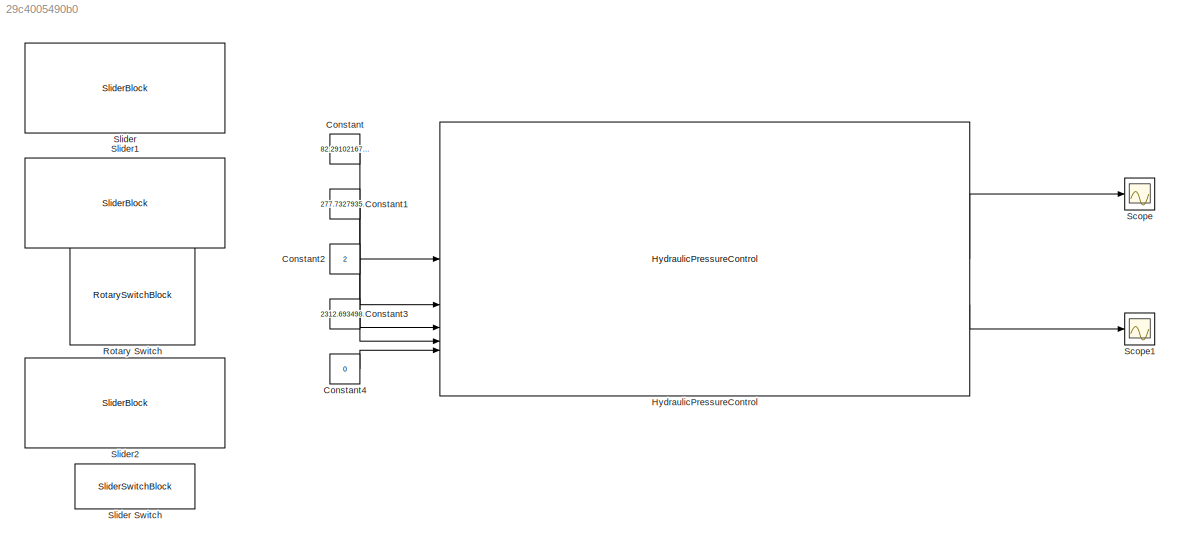
MODEL slx_29c4005490b0
KIND model
CONFIG AbsTol = auto
CONFIG EnableMultiTasking = off
CONFIG FixedStep = auto
CONFIG MaxStep = auto
CONFIG MinStep = auto
CONFIG RelTol = 1e-3
CONFIG SampleTimeConstraint = Unconstrained
CONFIG SolverName = VariableStepAuto
CONFIG StartTime = 0.0
CONFIG StopTime = inf
BLOCK [Constant] Constant
  Value = 82.29102167182663
BLOCK [Constant] Constant1
  Value = 277.7327935222672
BLOCK [Constant] Constant2
  Value = 2
BLOCK [Constant] Constant3
  Value = 2312.693498452013
BLOCK [Constant] Constant4
  Value = 0
BLOCK [Reference] HydraulicPressureControl  REF=TCU_HPC/HydraulicPressureControl
  SourceBlock = TCU_HPC/HydraulicPressureControl
  SourceType = SubSystem
BLOCK [RotarySwitchBlock] Rotary Switch
BLOCK [Scope] Scope
  Floating = off
  GraphicalSettings = {"GraphicalSettings":{"LegacySettings":true,"Style":{"Style":{"PlotType":"Auto"}}}}
  NumInputPorts = 1
  WasSavedAsWebScope = on
BLOCK [Scope] Scope1
  DataLoggingVariableName = ScopeData1
  Floating = off
  GraphicalSettings = {"GraphicalSettings":{"LegacySettings":true,"Style":{"Style":{"PlotType":"Auto"}}}}
  NumInputPorts = 1
  WasSavedAsWebScope = on
BLOCK [SliderBlock] Slider
  ScaleMax = 120
  ScaleMin = -20
  TickInterval = 20
BLOCK [SliderSwitchBlock] Slider Switch
BLOCK [SliderBlock] Slider1
  ScaleMax = 350
  TickInterval = 50
BLOCK [SliderBlock] Slider2
  ScaleMax = 4500
LINE Constant1:1 -> HydraulicPressureControl:2
LINE Constant2:1 -> HydraulicPressureControl:3
LINE Constant3:1 -> HydraulicPressureControl:4
LINE Constant4:1 -> HydraulicPressureControl:5
LINE Constant:1 -> HydraulicPressureControl:1
LINE HydraulicPressureControl:1 -> Scope:1
LINE HydraulicPressureControl:2 -> Scope1:1
